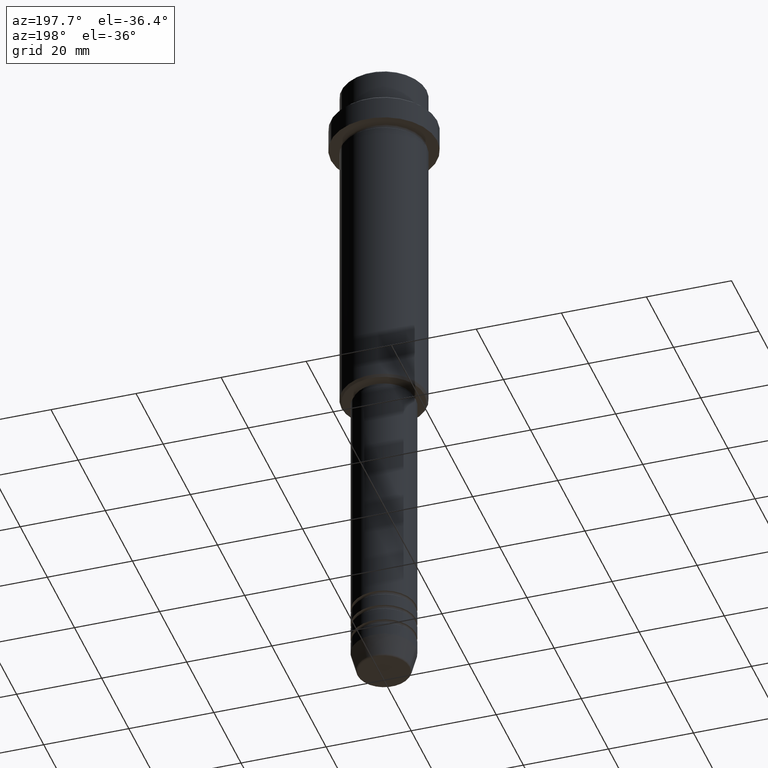
[diagram: clean part render]
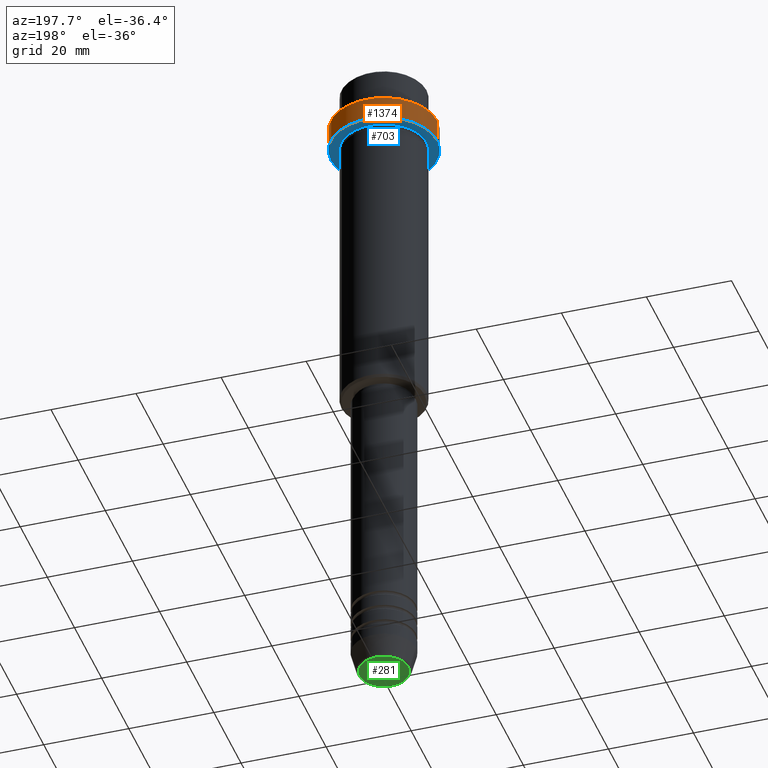
[diagram: same view with three faces highlighted in distinct colors, each labeled with its STEP entity id]
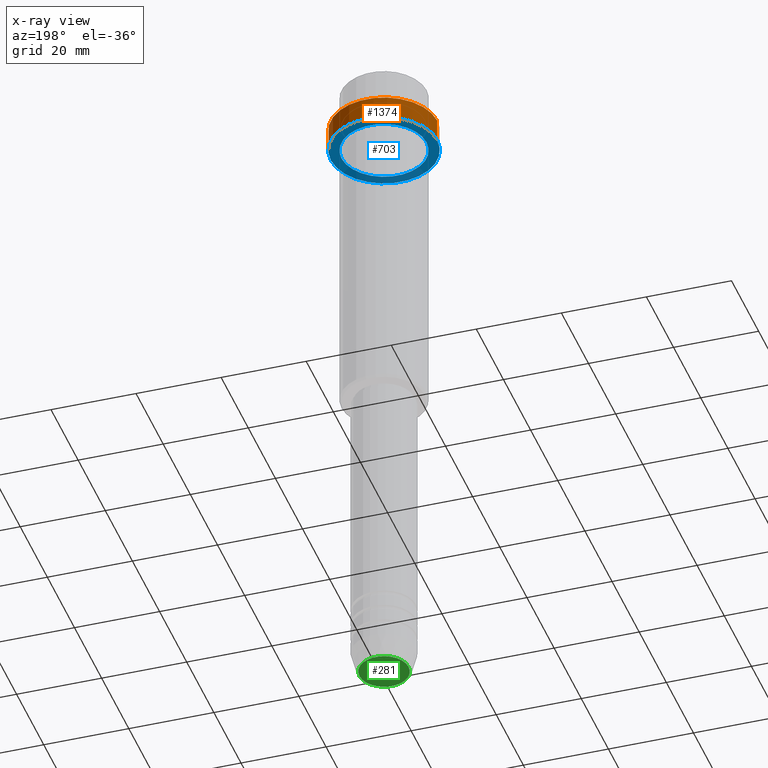
[diagram: x-ray of the same camera — body ghosted, the three highlighted faces saturated]
A machine part, auxiliary view with three faces highlighted in distinct colors.
The next image is the same camera in x-ray (body ghosted, the three faces saturated) — at least one of them is partly hidden behind the body in this view.
Their STEP definitions:

[orange] entity #1374 — the highlighted cylindrical surface (partial cylindrical patch) has radius 12.5 mm, axis along (-0, -0, 1).
#42 = DIRECTION ( 'NONE',  ( -0.000000000000000000, -0.000000000000000000, 1.000000000000000000 ) ) ;
#46 = ORIENTED_EDGE ( 'NONE', *, *, #1050, .F. ) ;
#58 = FACE_OUTER_BOUND ( 'NONE', #1347, .T. ) ;
#76 = DIRECTION ( 'NONE',  ( 0.000000000000000000, 0.000000000000000000, -1.000000000000000000 ) ) ;
#90 = DIRECTION ( 'NONE',  ( -0.000000000000000000, -0.000000000000000000, 1.000000000000000000 ) ) ;
#117 = CARTESIAN_POINT ( 'NONE',  ( 12.50000000000000000, 0.000000000000000000, -15.00000000000000178 ) ) ;
#139 = CARTESIAN_POINT ( 'NONE',  ( -12.50000000000000000, 1.530808498934191521E-15, 0.000000000000000000 ) ) ;
#170 = VECTOR ( 'NONE', #90, 1000.000000000000000 ) ;
#316 = VERTEX_POINT ( 'NONE', #1207 ) ;
#342 = EDGE_CURVE ( 'NONE', #316, #1283, #949, .T. ) ;
#358 = VERTEX_POINT ( 'NONE', #1146 ) ;
#394 = EDGE_CURVE ( 'NONE', #358, #316, #565, .T. ) ;
#395 = CIRCLE ( 'NONE', #1204, 12.50000000000000000 ) ;
#415 = CARTESIAN_POINT ( 'NONE',  ( 12.50000000000000000, 0.000000000000000000, 0.000000000000000000 ) ) ;
#447 = AXIS2_PLACEMENT_3D ( 'NONE', #1030, #42, #480 ) ;
#480 = DIRECTION ( 'NONE',  ( 1.000000000000000000, 0.000000000000000000, 0.000000000000000000 ) ) ;
#505 = CARTESIAN_POINT ( 'NONE',  ( 0.000000000000000000, 0.000000000000000000, -15.00000000000000178 ) ) ;
#545 = ORIENTED_EDGE ( 'NONE', *, *, #394, .T. ) ;
#565 = LINE ( 'NONE', #139, #1059 ) ;
#600 = AXIS2_PLACEMENT_3D ( 'NONE', #1081, #76, #1054 ) ;
#646 = LINE ( 'NONE', #415, #170 ) ;
#657 = ORIENTED_EDGE ( 'NONE', *, *, #943, .T. ) ;
#802 = DIRECTION ( 'NONE',  ( -0.000000000000000000, -0.000000000000000000, 1.000000000000000000 ) ) ;
#943 = EDGE_CURVE ( 'NONE', #1149, #358, #395, .T. ) ;
#949 = CIRCLE ( 'NONE', #600, 12.50000000000000000 ) ;
#1028 = DIRECTION ( 'NONE',  ( -0.000000000000000000, -0.000000000000000000, 1.000000000000000000 ) ) ;
#1030 = CARTESIAN_POINT ( 'NONE',  ( 0.000000000000000000, 0.000000000000000000, 0.000000000000000000 ) ) ;
#1050 = EDGE_CURVE ( 'NONE', #1149, #1283, #646, .T. ) ;
#1054 = DIRECTION ( 'NONE',  ( 1.000000000000000000, 0.000000000000000000, 0.000000000000000000 ) ) ;
#1059 = VECTOR ( 'NONE', #802, 1000.000000000000000 ) ;
#1081 = CARTESIAN_POINT ( 'NONE',  ( 0.000000000000000000, 0.000000000000000000, -9.499999999999978684 ) ) ;
#1139 = DIRECTION ( 'NONE',  ( 1.000000000000000000, 0.000000000000000000, 0.000000000000000000 ) ) ;
#1146 = CARTESIAN_POINT ( 'NONE',  ( -12.50000000000000000, 1.530808498934191521E-15, -15.00000000000000178 ) ) ;
#1149 = VERTEX_POINT ( 'NONE', #117 ) ;
#1204 = AXIS2_PLACEMENT_3D ( 'NONE', #505, #1028, #1139 ) ;
#1207 = CARTESIAN_POINT ( 'NONE',  ( -12.50000000000000000, 1.530808498934191521E-15, -9.499999999999978684 ) ) ;
#1240 = CARTESIAN_POINT ( 'NONE',  ( 12.50000000000000000, 0.000000000000000000, -9.499999999999978684 ) ) ;
#1253 = ORIENTED_EDGE ( 'NONE', *, *, #342, .T. ) ;
#1260 = CYLINDRICAL_SURFACE ( 'NONE', #447, 12.50000000000000000 ) ;
#1283 = VERTEX_POINT ( 'NONE', #1240 ) ;
#1347 = EDGE_LOOP ( 'NONE', ( #657, #545, #1253, #46 ) ) ;
#1374 = ADVANCED_FACE ( 'NONE', ( #58 ), #1260, .T. ) ;

[blue] entity #703 — the highlighted planar face has unit normal (0, 0, -1).
#4 = EDGE_CURVE ( 'NONE', #985, #1027, #507, .T. ) ;
#20 = DIRECTION ( 'NONE',  ( -1.000000000000000000, 0.000000000000000000, -0.000000000000000000 ) ) ;
#117 = CARTESIAN_POINT ( 'NONE',  ( 12.50000000000000000, 0.000000000000000000, -15.00000000000000178 ) ) ;
#137 = EDGE_CURVE ( 'NONE', #1027, #985, #927, .T. ) ;
#187 = ORIENTED_EDGE ( 'NONE', *, *, #137, .T. ) ;
#238 = AXIS2_PLACEMENT_3D ( 'NONE', #1076, #530, #970 ) ;
#254 = DIRECTION ( 'NONE',  ( -0.000000000000000000, -0.000000000000000000, 1.000000000000000000 ) ) ;
#283 = EDGE_CURVE ( 'NONE', #358, #1149, #1107, .T. ) ;
#296 = CARTESIAN_POINT ( 'NONE',  ( -9.999999999999994671, 0.000000000000000000, -15.00000000000000000 ) ) ;
#343 = DIRECTION ( 'NONE',  ( 0.000000000000000000, 0.000000000000000000, -1.000000000000000000 ) ) ;
#344 = DIRECTION ( 'NONE',  ( 1.000000000000000000, 0.000000000000000000, 0.000000000000000000 ) ) ;
#345 = AXIS2_PLACEMENT_3D ( 'NONE', #355, #254, #1140 ) ;
#355 = CARTESIAN_POINT ( 'NONE',  ( 0.000000000000000000, 0.000000000000000000, -15.00000000000000000 ) ) ;
#358 = VERTEX_POINT ( 'NONE', #1146 ) ;
#395 = CIRCLE ( 'NONE', #1204, 12.50000000000000000 ) ;
#422 = ORIENTED_EDGE ( 'NONE', *, *, #4, .T. ) ;
#505 = CARTESIAN_POINT ( 'NONE',  ( 0.000000000000000000, 0.000000000000000000, -15.00000000000000178 ) ) ;
#507 = CIRCLE ( 'NONE', #238, 9.999999999999994671 ) ;
#530 = DIRECTION ( 'NONE',  ( -0.000000000000000000, -0.000000000000000000, 1.000000000000000000 ) ) ;
#587 = EDGE_LOOP ( 'NONE', ( #860, #643 ) ) ;
#643 = ORIENTED_EDGE ( 'NONE', *, *, #283, .F. ) ;
#690 = CARTESIAN_POINT ( 'NONE',  ( 0.000000000000000000, 0.000000000000000000, -15.00000000000000178 ) ) ;
#703 = ADVANCED_FACE ( 'NONE', ( #908, #994 ), #895, .T. ) ;
#806 = EDGE_LOOP ( 'NONE', ( #422, #187 ) ) ;
#855 = CARTESIAN_POINT ( 'NONE',  ( 9.999999999999994671, 1.224646799147352665E-15, -15.00000000000000000 ) ) ;
#860 = ORIENTED_EDGE ( 'NONE', *, *, #943, .F. ) ;
#895 = PLANE ( 'NONE',  #1362 ) ;
#896 = DIRECTION ( 'NONE',  ( -0.000000000000000000, -0.000000000000000000, 1.000000000000000000 ) ) ;
#908 = FACE_BOUND ( 'NONE', #806, .T. ) ;
#927 = CIRCLE ( 'NONE', #345, 9.999999999999994671 ) ;
#943 = EDGE_CURVE ( 'NONE', #1149, #358, #395, .T. ) ;
#970 = DIRECTION ( 'NONE',  ( -1.000000000000000000, 0.000000000000000000, 0.000000000000000000 ) ) ;
#985 = VERTEX_POINT ( 'NONE', #296 ) ;
#994 = FACE_OUTER_BOUND ( 'NONE', #587, .T. ) ;
#1027 = VERTEX_POINT ( 'NONE', #855 ) ;
#1028 = DIRECTION ( 'NONE',  ( -0.000000000000000000, -0.000000000000000000, 1.000000000000000000 ) ) ;
#1076 = CARTESIAN_POINT ( 'NONE',  ( 0.000000000000000000, 0.000000000000000000, -15.00000000000000000 ) ) ;
#1107 = CIRCLE ( 'NONE', #1248, 12.50000000000000000 ) ;
#1139 = DIRECTION ( 'NONE',  ( 1.000000000000000000, 0.000000000000000000, 0.000000000000000000 ) ) ;
#1140 = DIRECTION ( 'NONE',  ( -1.000000000000000000, 0.000000000000000000, 0.000000000000000000 ) ) ;
#1146 = CARTESIAN_POINT ( 'NONE',  ( -12.50000000000000000, 1.530808498934191521E-15, -15.00000000000000178 ) ) ;
#1149 = VERTEX_POINT ( 'NONE', #117 ) ;
#1204 = AXIS2_PLACEMENT_3D ( 'NONE', #505, #1028, #1139 ) ;
#1218 = CARTESIAN_POINT ( 'NONE',  ( 0.000000000000000000, 12.50000000000000000, -15.00000000000000000 ) ) ;
#1248 = AXIS2_PLACEMENT_3D ( 'NONE', #690, #896, #344 ) ;
#1362 = AXIS2_PLACEMENT_3D ( 'NONE', #1218, #343, #20 ) ;

[green] entity #281 — the highlighted planar face has unit normal (0, -0, 1).
#22 = ORIENTED_EDGE ( 'NONE', *, *, #1032, .T. ) ;
#37 = EDGE_LOOP ( 'NONE', ( #22, #524 ) ) ;
#62 = EDGE_CURVE ( 'NONE', #1400, #1056, #768, .T. ) ;
#99 = DIRECTION ( 'NONE',  ( 1.000000000000000000, 0.000000000000000000, 0.000000000000000000 ) ) ;
#180 = CARTESIAN_POINT ( 'NONE',  ( -5.776590543854905668, 7.370012612361447573E-16, -159.9999999999999716 ) ) ;
#227 = PLANE ( 'NONE',  #770 ) ;
#281 = ADVANCED_FACE ( 'NONE', ( #760 ), #227, .F. ) ;
#292 = CARTESIAN_POINT ( 'NONE',  ( 5.776590543854905668, 0.000000000000000000, -159.9999999999999716 ) ) ;
#313 = CARTESIAN_POINT ( 'NONE',  ( 0.000000000000000000, 0.000000000000000000, -159.9999999999999716 ) ) ;
#317 = DIRECTION ( 'NONE',  ( 1.000000000000000000, 0.000000000000000000, 0.000000000000000000 ) ) ;
#465 = DIRECTION ( 'NONE',  ( 1.000000000000000000, 0.000000000000000000, 0.000000000000000000 ) ) ;
#524 = ORIENTED_EDGE ( 'NONE', *, *, #62, .T. ) ;
#534 = AXIS2_PLACEMENT_3D ( 'NONE', #882, #876, #317 ) ;
#563 = DIRECTION ( 'NONE',  ( 0.000000000000000000, -0.000000000000000000, 1.000000000000000000 ) ) ;
#760 = FACE_OUTER_BOUND ( 'NONE', #37, .T. ) ;
#764 = DIRECTION ( 'NONE',  ( 0.000000000000000000, 0.000000000000000000, -1.000000000000000000 ) ) ;
#768 = CIRCLE ( 'NONE', #534, 5.776590543854905668 ) ;
#770 = AXIS2_PLACEMENT_3D ( 'NONE', #1338, #563, #465 ) ;
#876 = DIRECTION ( 'NONE',  ( 0.000000000000000000, 0.000000000000000000, -1.000000000000000000 ) ) ;
#882 = CARTESIAN_POINT ( 'NONE',  ( 0.000000000000000000, 0.000000000000000000, -159.9999999999999716 ) ) ;
#911 = AXIS2_PLACEMENT_3D ( 'NONE', #313, #764, #99 ) ;
#1032 = EDGE_CURVE ( 'NONE', #1056, #1400, #1228, .T. ) ;
#1056 = VERTEX_POINT ( 'NONE', #292 ) ;
#1228 = CIRCLE ( 'NONE', #911, 5.776590543854905668 ) ;
#1338 = CARTESIAN_POINT ( 'NONE',  ( 0.000000000000000000, 0.000000000000000000, -159.9999999999999716 ) ) ;
#1400 = VERTEX_POINT ( 'NONE', #180 ) ;